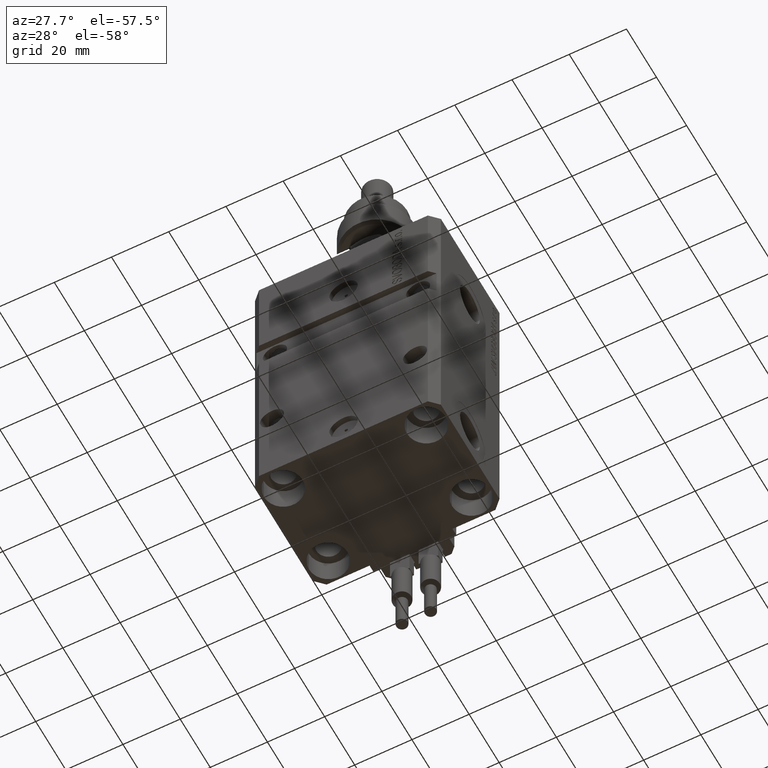
[diagram: clean part render]
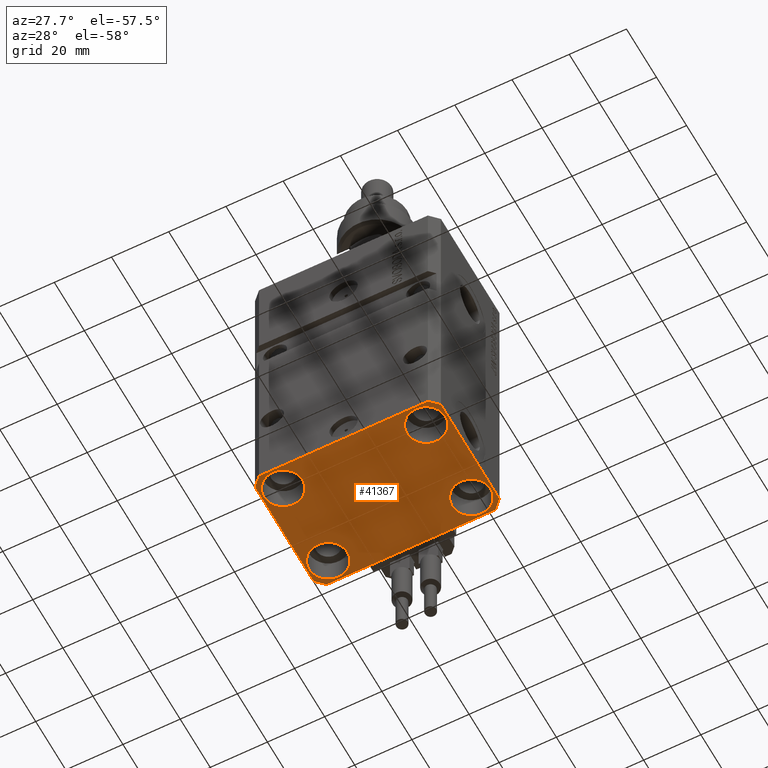
[diagram: same view with one face highlighted and labeled with its STEP entity id]
A machine part, auxiliary view. The second image highlights one B-rep face of the part: STEP entity #41367.
In plain terms, the highlighted planar face has unit normal (0, 0, 1).
Its self-contained STEP definition (entity closure, byte-faithful):
#576 = VERTEX_POINT ( 'NONE', #31670 ) ;
#603 = VERTEX_POINT ( 'NONE', #11904 ) ;
#678 = EDGE_CURVE ( 'NONE', #42740, #576, #5136, .T. ) ;
#744 = CARTESIAN_POINT ( 'NONE',  ( -29.49999999999650413, -22.49999999999949907, -107.0000000000000000 ) ) ;
#921 = VECTOR ( 'NONE', #44944, 1000.000000000000000 ) ;
#1027 = FACE_BOUND ( 'NONE', #16272, .T. ) ;
#1111 = VERTEX_POINT ( 'NONE', #40155 ) ;
#1936 = DIRECTION ( 'NONE',  ( 0.7071067811865474617, -0.7071067811865474617, 0.000000000000000000 ) ) ;
#2199 = CIRCLE ( 'NONE', #32071, 6.749999999958452790 ) ;
#2886 = EDGE_CURVE ( 'NONE', #603, #13786, #13820, .T. ) ;
#4400 = ORIENTED_EDGE ( 'NONE', *, *, #9564, .F. ) ;
#4909 = FACE_OUTER_BOUND ( 'NONE', #42591, .T. ) ;
#5136 = LINE ( 'NONE', #744, #51214 ) ;
#5204 = VECTOR ( 'NONE', #1936, 1000.000000000000114 ) ;
#5505 = ORIENTED_EDGE ( 'NONE', *, *, #15766, .F. ) ;
#6291 = ORIENTED_EDGE ( 'NONE', *, *, #11478, .T. ) ;
#6679 = AXIS2_PLACEMENT_3D ( 'NONE', #35831, #36349, #23881 ) ;
#6853 = ORIENTED_EDGE ( 'NONE', *, *, #34865, .T. ) ;
#7099 = ORIENTED_EDGE ( 'NONE', *, *, #29387, .T. ) ;
#7425 = CARTESIAN_POINT ( 'NONE',  ( -18.24999999997747224, 15.00000000000000000, -107.0000000000000000 ) ) ;
#7780 = CARTESIAN_POINT ( 'NONE',  ( -18.24999999995845812, -15.00000000000000000, -107.0000000000000000 ) ) ;
#7836 = VERTEX_POINT ( 'NONE', #46104 ) ;
#8049 = PLANE ( 'NONE',  #6679 ) ;
#8512 = DIRECTION ( 'NONE',  ( 1.000000000000000000, 0.000000000000000000, 0.000000000000000000 ) ) ;
#8913 = CARTESIAN_POINT ( 'NONE',  ( 25.00000000000000355, -15.00000000000000000, -107.0000000000000000 ) ) ;
#9385 = DIRECTION ( 'NONE',  ( -0.000000000000000000, -0.000000000000000000, 1.000000000000000000 ) ) ;
#9564 = EDGE_CURVE ( 'NONE', #7836, #24781, #19424, .T. ) ;
#9637 = EDGE_CURVE ( 'NONE', #34298, #14966, #9921, .T. ) ;
#9779 = CARTESIAN_POINT ( 'NONE',  ( -29.49999999999650413, 22.49999999999949907, -107.0000000000000000 ) ) ;
#9921 = CIRCLE ( 'NONE', #16591, 6.749999999977465137 ) ;
#10428 = VERTEX_POINT ( 'NONE', #12745 ) ;
#10629 = DIRECTION ( 'NONE',  ( -0.000000000000000000, -0.000000000000000000, 1.000000000000000000 ) ) ;
#11443 = DIRECTION ( 'NONE',  ( -0.000000000000000000, -0.000000000000000000, 1.000000000000000000 ) ) ;
#11478 = EDGE_CURVE ( 'NONE', #29090, #42679, #43186, .T. ) ;
#11503 = EDGE_LOOP ( 'NONE', ( #22226, #6853 ) ) ;
#11504 = AXIS2_PLACEMENT_3D ( 'NONE', #50111, #49345, #37384 ) ;
#11560 = ORIENTED_EDGE ( 'NONE', *, *, #36520, .F. ) ;
#11658 = AXIS2_PLACEMENT_3D ( 'NONE', #18432, #10629, #15578 ) ;
#11904 = CARTESIAN_POINT ( 'NONE',  ( 18.25000000004154543, 15.00000000000000888, -107.0000000000000000 ) ) ;
#12142 = DIRECTION ( 'NONE',  ( -1.000000000000000000, -2.352167425053553784E-16, 0.000000000000000000 ) ) ;
#12455 = FACE_BOUND ( 'NONE', #43198, .T. ) ;
#12498 = CARTESIAN_POINT ( 'NONE',  ( 32.49999999999702993, 19.49999999999945999, -107.0000000000000000 ) ) ;
#12745 = CARTESIAN_POINT ( 'NONE',  ( 32.49999999999702993, 19.49999999999945999, -107.0000000000000000 ) ) ;
#13137 = DIRECTION ( 'NONE',  ( 1.334402673828349134E-14, 1.000000000000000000, 0.000000000000000000 ) ) ;
#13154 = CARTESIAN_POINT ( 'NONE',  ( 32.49999999999651124, -19.49999999999949196, -107.0000000000000000 ) ) ;
#13287 = ORIENTED_EDGE ( 'NONE', *, *, #33988, .F. ) ;
#13786 = VERTEX_POINT ( 'NONE', #44248 ) ;
#13820 = CIRCLE ( 'NONE', #32086, 6.749999999958452790 ) ;
#13986 = VERTEX_POINT ( 'NONE', #35113 ) ;
#14966 = VERTEX_POINT ( 'NONE', #39793 ) ;
#15379 = CARTESIAN_POINT ( 'NONE',  ( 24.99999999999999645, 15.00000000000000888, -107.0000000000000000 ) ) ;
#15578 = DIRECTION ( 'NONE',  ( 1.000000000000000000, 0.000000000000000000, 0.000000000000000000 ) ) ;
#15766 = EDGE_CURVE ( 'NONE', #10428, #7836, #20286, .T. ) ;
#15860 = ORIENTED_EDGE ( 'NONE', *, *, #34507, .T. ) ;
#16174 = DIRECTION ( 'NONE',  ( 1.000000000000000000, 0.000000000000000000, 0.000000000000000000 ) ) ;
#16250 = CARTESIAN_POINT ( 'NONE',  ( 29.49999999999650413, -22.49999999999949196, -107.0000000000000000 ) ) ;
#16272 = EDGE_LOOP ( 'NONE', ( #31289, #7099 ) ) ;
#16591 = AXIS2_PLACEMENT_3D ( 'NONE', #44086, #32916, #8512 ) ;
#17541 = CARTESIAN_POINT ( 'NONE',  ( -32.49999999999650413, -19.49999999999949907, -107.0000000000000000 ) ) ;
#17561 = VERTEX_POINT ( 'NONE', #46110 ) ;
#18089 = LINE ( 'NONE', #38084, #46318 ) ;
#18432 = CARTESIAN_POINT ( 'NONE',  ( -25.00000000000000355, 15.00000000000000000, -107.0000000000000000 ) ) ;
#19424 = LINE ( 'NONE', #35526, #35666 ) ;
#19729 = EDGE_CURVE ( 'NONE', #1111, #42740, #37522, .T. ) ;
#20286 = LINE ( 'NONE', #12498, #921 ) ;
#20331 = DIRECTION ( 'NONE',  ( 1.000000000000000000, 0.000000000000000000, 0.000000000000000000 ) ) ;
#21227 = VERTEX_POINT ( 'NONE', #7780 ) ;
#21398 = ORIENTED_EDGE ( 'NONE', *, *, #22999, .F. ) ;
#21441 = CIRCLE ( 'NONE', #39729, 6.749999999977465137 ) ;
#22226 = ORIENTED_EDGE ( 'NONE', *, *, #41116, .T. ) ;
#22999 = EDGE_CURVE ( 'NONE', #576, #41704, #44781, .T. ) ;
#23158 = DIRECTION ( 'NONE',  ( 1.000000000000000000, 0.000000000000000000, 0.000000000000000000 ) ) ;
#23881 = DIRECTION ( 'NONE',  ( 1.000000000000000000, 0.000000000000000000, -0.000000000000000000 ) ) ;
#23927 = DIRECTION ( 'NONE',  ( -0.000000000000000000, -0.000000000000000000, 1.000000000000000000 ) ) ;
#24712 = CARTESIAN_POINT ( 'NONE',  ( -25.00000000000000355, -15.00000000000000000, -107.0000000000000000 ) ) ;
#24739 = DIRECTION ( 'NONE',  ( -0.000000000000000000, -0.000000000000000000, 1.000000000000000000 ) ) ;
#24781 = VERTEX_POINT ( 'NONE', #38119 ) ;
#24904 = FACE_BOUND ( 'NONE', #11503, .T. ) ;
#25036 = DIRECTION ( 'NONE',  ( 0.7071067811865483499, 0.7071067811865466846, 0.000000000000000000 ) ) ;
#25111 = LINE ( 'NONE', #9779, #27871 ) ;
#27831 = CIRCLE ( 'NONE', #49414, 6.750000000022533087 ) ;
#27871 = VECTOR ( 'NONE', #29525, 1000.000000000000114 ) ;
#28722 = VECTOR ( 'NONE', #25036, 1000.000000000000000 ) ;
#28936 = EDGE_CURVE ( 'NONE', #24781, #13986, #25111, .T. ) ;
#29090 = VERTEX_POINT ( 'NONE', #7425 ) ;
#29387 = EDGE_CURVE ( 'NONE', #13786, #603, #2199, .T. ) ;
#29525 = DIRECTION ( 'NONE',  ( -0.7071067811865474617, -0.7071067811865474617, 0.000000000000000000 ) ) ;
#31289 = ORIENTED_EDGE ( 'NONE', *, *, #2886, .T. ) ;
#31670 = CARTESIAN_POINT ( 'NONE',  ( 29.49999999999650413, -22.49999999999949196, -107.0000000000000000 ) ) ;
#32007 = ORIENTED_EDGE ( 'NONE', *, *, #28936, .F. ) ;
#32071 = AXIS2_PLACEMENT_3D ( 'NONE', #47555, #11443, #34834 ) ;
#32086 = AXIS2_PLACEMENT_3D ( 'NONE', #15379, #23927, #23158 ) ;
#32916 = DIRECTION ( 'NONE',  ( -0.000000000000000000, -0.000000000000000000, 1.000000000000000000 ) ) ;
#33988 = EDGE_CURVE ( 'NONE', #13986, #1111, #18089, .T. ) ;
#34298 = VERTEX_POINT ( 'NONE', #35156 ) ;
#34507 = EDGE_CURVE ( 'NONE', #14966, #34298, #21441, .T. ) ;
#34834 = DIRECTION ( 'NONE',  ( 1.000000000000000000, 0.000000000000000000, 0.000000000000000000 ) ) ;
#34865 = EDGE_CURVE ( 'NONE', #21227, #17561, #50485, .T. ) ;
#35113 = CARTESIAN_POINT ( 'NONE',  ( -32.49999999999650413, 19.49999999999949907, -107.0000000000000000 ) ) ;
#35156 = CARTESIAN_POINT ( 'NONE',  ( 31.74999999997746869, -15.00000000000000000, -107.0000000000000000 ) ) ;
#35415 = CARTESIAN_POINT ( 'NONE',  ( -25.00000000000000355, 15.00000000000000000, -107.0000000000000000 ) ) ;
#35526 = CARTESIAN_POINT ( 'NONE',  ( 29.49999999999707967, 22.49999999999951328, -107.0000000000000000 ) ) ;
#35666 = VECTOR ( 'NONE', #12142, 1000.000000000000000 ) ;
#35831 = CARTESIAN_POINT ( 'NONE',  ( 0.000000000000000000, 0.000000000000000000, -107.0000000000000000 ) ) ;
#36349 = DIRECTION ( 'NONE',  ( 0.000000000000000000, 0.000000000000000000, 1.000000000000000000 ) ) ;
#36520 = EDGE_CURVE ( 'NONE', #41704, #10428, #37031, .T. ) ;
#36807 = CARTESIAN_POINT ( 'NONE',  ( -29.49999999999650413, -22.49999999999949907, -107.0000000000000000 ) ) ;
#37031 = LINE ( 'NONE', #48739, #46426 ) ;
#37384 = DIRECTION ( 'NONE',  ( 1.000000000000000000, 0.000000000000000000, 0.000000000000000000 ) ) ;
#37522 = LINE ( 'NONE', #17541, #5204 ) ;
#38084 = CARTESIAN_POINT ( 'NONE',  ( -32.49999999999650413, 19.49999999999949907, -107.0000000000000000 ) ) ;
#38119 = CARTESIAN_POINT ( 'NONE',  ( -29.49999999999650413, 22.49999999999949907, -107.0000000000000000 ) ) ;
#38350 = ORIENTED_EDGE ( 'NONE', *, *, #678, .F. ) ;
#39209 = EDGE_LOOP ( 'NONE', ( #15860, #40651 ) ) ;
#39729 = AXIS2_PLACEMENT_3D ( 'NONE', #8913, #24739, #40851 ) ;
#39793 = CARTESIAN_POINT ( 'NONE',  ( 18.25000000002253842, -15.00000000000000000, -107.0000000000000000 ) ) ;
#40155 = CARTESIAN_POINT ( 'NONE',  ( -32.49999999999650413, -19.49999999999949907, -107.0000000000000000 ) ) ;
#40651 = ORIENTED_EDGE ( 'NONE', *, *, #9637, .T. ) ;
#40761 = FACE_BOUND ( 'NONE', #39209, .T. ) ;
#40851 = DIRECTION ( 'NONE',  ( 1.000000000000000000, 0.000000000000000000, 0.000000000000000000 ) ) ;
#41116 = EDGE_CURVE ( 'NONE', #17561, #21227, #49814, .T. ) ;
#41367 = ADVANCED_FACE ( 'NONE', ( #24904, #40761, #1027, #12455, #4909 ), #8049, .F. ) ;
#41704 = VERTEX_POINT ( 'NONE', #13154 ) ;
#42493 = DIRECTION ( 'NONE',  ( 0.000000000000000000, -1.000000000000000000, 0.000000000000000000 ) ) ;
#42591 = EDGE_LOOP ( 'NONE', ( #4400, #5505, #11560, #21398, #38350, #47890, #13287, #32007 ) ) ;
#42679 = VERTEX_POINT ( 'NONE', #48004 ) ;
#42740 = VERTEX_POINT ( 'NONE', #36807 ) ;
#43186 = CIRCLE ( 'NONE', #11658, 6.750000000022533087 ) ;
#43198 = EDGE_LOOP ( 'NONE', ( #47365, #6291 ) ) ;
#44086 = CARTESIAN_POINT ( 'NONE',  ( 25.00000000000000355, -15.00000000000000000, -107.0000000000000000 ) ) ;
#44248 = CARTESIAN_POINT ( 'NONE',  ( 31.74999999995845101, 15.00000000000000888, -107.0000000000000000 ) ) ;
#44781 = LINE ( 'NONE', #16250, #28722 ) ;
#44944 = DIRECTION ( 'NONE',  ( -0.7071067811865352493, 0.7071067811865597852, 0.000000000000000000 ) ) ;
#45119 = DIRECTION ( 'NONE',  ( 1.000000000000000000, 1.176083712526788232E-16, 0.000000000000000000 ) ) ;
#46104 = CARTESIAN_POINT ( 'NONE',  ( 29.49999999999707967, 22.49999999999951328, -107.0000000000000000 ) ) ;
#46110 = CARTESIAN_POINT ( 'NONE',  ( -31.75000000004154899, -15.00000000000000000, -107.0000000000000000 ) ) ;
#46318 = VECTOR ( 'NONE', #42493, 1000.000000000000000 ) ;
#46426 = VECTOR ( 'NONE', #13137, 1000.000000000000000 ) ;
#47098 = DIRECTION ( 'NONE',  ( -0.000000000000000000, -0.000000000000000000, 1.000000000000000000 ) ) ;
#47365 = ORIENTED_EDGE ( 'NONE', *, *, #49812, .T. ) ;
#47555 = CARTESIAN_POINT ( 'NONE',  ( 24.99999999999999645, 15.00000000000000888, -107.0000000000000000 ) ) ;
#47890 = ORIENTED_EDGE ( 'NONE', *, *, #19729, .F. ) ;
#48004 = CARTESIAN_POINT ( 'NONE',  ( -31.75000000002253842, 15.00000000000000000, -107.0000000000000000 ) ) ;
#48739 = CARTESIAN_POINT ( 'NONE',  ( 32.49999999999651124, -19.49999999999949196, -107.0000000000000000 ) ) ;
#49345 = DIRECTION ( 'NONE',  ( -0.000000000000000000, -0.000000000000000000, 1.000000000000000000 ) ) ;
#49414 = AXIS2_PLACEMENT_3D ( 'NONE', #35415, #47098, #20331 ) ;
#49812 = EDGE_CURVE ( 'NONE', #42679, #29090, #27831, .T. ) ;
#49814 = CIRCLE ( 'NONE', #50622, 6.750000000041541881 ) ;
#50111 = CARTESIAN_POINT ( 'NONE',  ( -25.00000000000000355, -15.00000000000000000, -107.0000000000000000 ) ) ;
#50485 = CIRCLE ( 'NONE', #11504, 6.750000000041541881 ) ;
#50622 = AXIS2_PLACEMENT_3D ( 'NONE', #24712, #9385, #16174 ) ;
#51214 = VECTOR ( 'NONE', #45119, 1000.000000000000000 ) ;